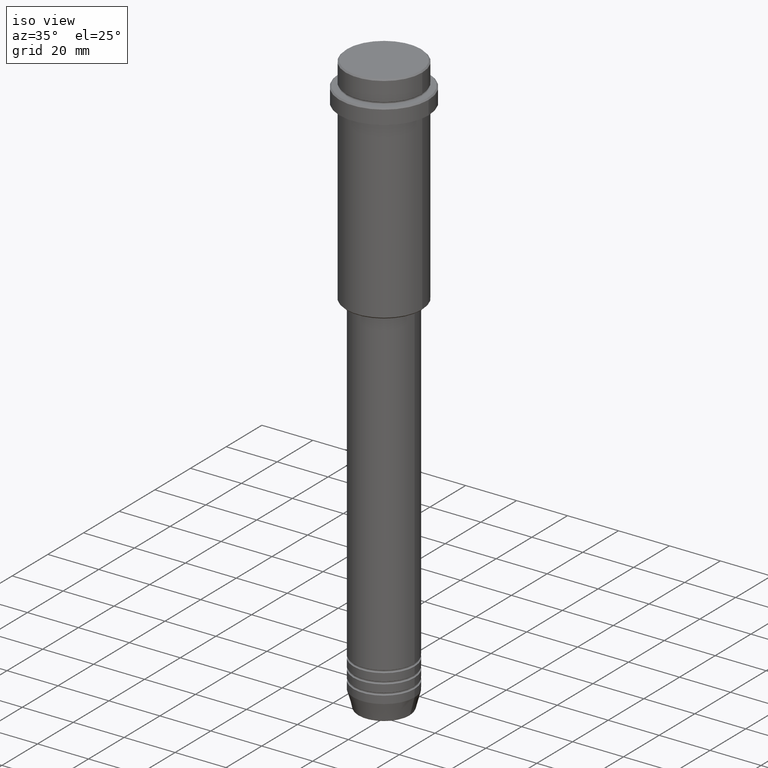
[diagram: clean part render]
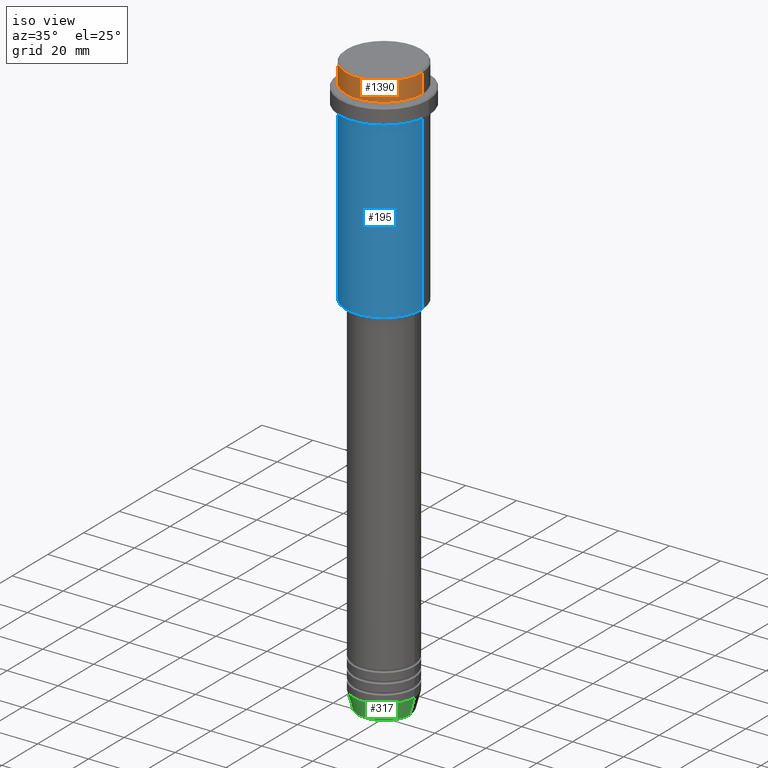
[diagram: same view with three faces highlighted in distinct colors, each labeled with its STEP entity id]
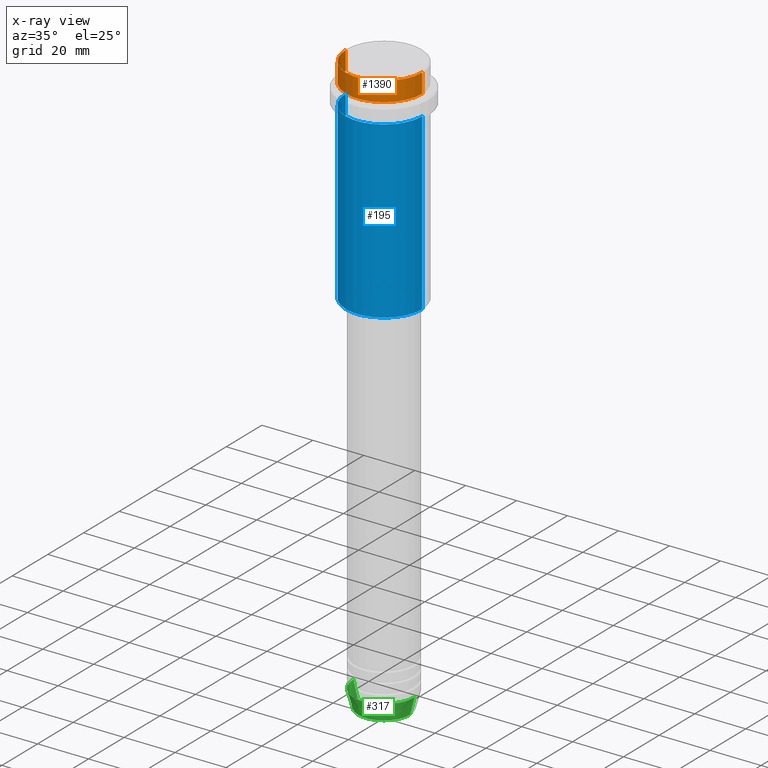
[diagram: x-ray of the same camera — body ghosted, the three highlighted faces saturated]
A machine part, iso view with three faces highlighted in distinct colors.
The next image is the same camera in x-ray (body ghosted, the three faces saturated) — at least one of them is partly hidden behind the body in this view.
Their STEP definitions:

[orange] entity #1390 — the highlighted cylindrical surface (partial cylindrical patch) has radius 15 mm, axis along (-0, -0, 1).
#33 = EDGE_CURVE ( 'NONE', #1017, #875, #1257, .T. ) ;
#69 = AXIS2_PLACEMENT_3D ( 'NONE', #923, #1372, #1055 ) ;
#70 = AXIS2_PLACEMENT_3D ( 'NONE', #411, #969, #1313 ) ;
#104 = CARTESIAN_POINT ( 'NONE',  ( -15.00000000000000000, 1.836970198721029589E-15, -7.999999999999998224 ) ) ;
#107 = DIRECTION ( 'NONE',  ( -0.000000000000000000, -0.000000000000000000, 1.000000000000000000 ) ) ;
#222 = EDGE_LOOP ( 'NONE', ( #587, #1246, #668, #1397 ) ) ;
#248 = AXIS2_PLACEMENT_3D ( 'NONE', #961, #107, #323 ) ;
#293 = CIRCLE ( 'NONE', #69, 15.00000000000000000 ) ;
#318 = CARTESIAN_POINT ( 'NONE',  ( 15.00000000000000000, 0.000000000000000000, -0.4999999999999831246 ) ) ;
#323 = DIRECTION ( 'NONE',  ( 1.000000000000000000, 0.000000000000000000, 0.000000000000000000 ) ) ;
#393 = CARTESIAN_POINT ( 'NONE',  ( 15.00000000000000000, 0.000000000000000000, 0.000000000000000000 ) ) ;
#411 = CARTESIAN_POINT ( 'NONE',  ( 0.000000000000000000, 0.000000000000000000, -7.999999999999998224 ) ) ;
#587 = ORIENTED_EDGE ( 'NONE', *, *, #1170, .F. ) ;
#640 = CYLINDRICAL_SURFACE ( 'NONE', #248, 15.00000000000000000 ) ;
#668 = ORIENTED_EDGE ( 'NONE', *, *, #1286, .T. ) ;
#763 = VECTOR ( 'NONE', #1169, 1000.000000000000000 ) ;
#826 = LINE ( 'NONE', #1267, #1229 ) ;
#875 = VERTEX_POINT ( 'NONE', #1312 ) ;
#923 = CARTESIAN_POINT ( 'NONE',  ( 0.000000000000000000, 0.000000000000000000, -0.4999999999999831246 ) ) ;
#943 = VERTEX_POINT ( 'NONE', #1405 ) ;
#961 = CARTESIAN_POINT ( 'NONE',  ( 0.000000000000000000, 0.000000000000000000, 0.000000000000000000 ) ) ;
#969 = DIRECTION ( 'NONE',  ( -0.000000000000000000, -0.000000000000000000, 1.000000000000000000 ) ) ;
#1017 = VERTEX_POINT ( 'NONE', #104 ) ;
#1034 = DIRECTION ( 'NONE',  ( -0.000000000000000000, -0.000000000000000000, 1.000000000000000000 ) ) ;
#1055 = DIRECTION ( 'NONE',  ( 1.000000000000000000, 0.000000000000000000, 0.000000000000000000 ) ) ;
#1169 = DIRECTION ( 'NONE',  ( -0.000000000000000000, -0.000000000000000000, 1.000000000000000000 ) ) ;
#1170 = EDGE_CURVE ( 'NONE', #1017, #943, #826, .T. ) ;
#1201 = EDGE_CURVE ( 'NONE', #1266, #943, #293, .T. ) ;
#1229 = VECTOR ( 'NONE', #1034, 1000.000000000000000 ) ;
#1246 = ORIENTED_EDGE ( 'NONE', *, *, #33, .T. ) ;
#1257 = CIRCLE ( 'NONE', #70, 15.00000000000000000 ) ;
#1266 = VERTEX_POINT ( 'NONE', #318 ) ;
#1267 = CARTESIAN_POINT ( 'NONE',  ( -15.00000000000000000, 1.836970198721029589E-15, 0.000000000000000000 ) ) ;
#1286 = EDGE_CURVE ( 'NONE', #875, #1266, #1363, .T. ) ;
#1301 = FACE_OUTER_BOUND ( 'NONE', #222, .T. ) ;
#1312 = CARTESIAN_POINT ( 'NONE',  ( 15.00000000000000000, 0.000000000000000000, -7.999999999999998224 ) ) ;
#1313 = DIRECTION ( 'NONE',  ( 1.000000000000000000, 0.000000000000000000, 0.000000000000000000 ) ) ;
#1363 = LINE ( 'NONE', #393, #763 ) ;
#1372 = DIRECTION ( 'NONE',  ( 0.000000000000000000, 0.000000000000000000, -1.000000000000000000 ) ) ;
#1390 = ADVANCED_FACE ( 'NONE', ( #1301 ), #640, .T. ) ;
#1397 = ORIENTED_EDGE ( 'NONE', *, *, #1201, .T. ) ;
#1405 = CARTESIAN_POINT ( 'NONE',  ( -15.00000000000000000, 1.836970198721029589E-15, -0.4999999999999831246 ) ) ;

[blue] entity #195 — the highlighted cylindrical surface (partial cylindrical patch) has radius 15 mm, axis along (-0, -0, 1).
#49 = VERTEX_POINT ( 'NONE', #105 ) ;
#58 = VERTEX_POINT ( 'NONE', #877 ) ;
#63 = AXIS2_PLACEMENT_3D ( 'NONE', #503, #1036, #824 ) ;
#105 = CARTESIAN_POINT ( 'NONE',  ( -15.00000000000000000, 1.836970198721029589E-15, -84.49999999999997158 ) ) ;
#114 = AXIS2_PLACEMENT_3D ( 'NONE', #854, #1184, #246 ) ;
#147 = DIRECTION ( 'NONE',  ( 1.000000000000000000, 0.000000000000000000, 0.000000000000000000 ) ) ;
#194 = CIRCLE ( 'NONE', #982, 15.00000000000000178 ) ;
#195 = ADVANCED_FACE ( 'NONE', ( #1146 ), #400, .T. ) ;
#246 = DIRECTION ( 'NONE',  ( -1.000000000000000000, 0.000000000000000000, 0.000000000000000000 ) ) ;
#261 = EDGE_CURVE ( 'NONE', #58, #510, #194, .T. ) ;
#352 = VERTEX_POINT ( 'NONE', #990 ) ;
#373 = CIRCLE ( 'NONE', #114, 15.00000000000000000 ) ;
#400 = CYLINDRICAL_SURFACE ( 'NONE', #63, 15.00000000000000000 ) ;
#428 = ORIENTED_EDGE ( 'NONE', *, *, #261, .F. ) ;
#503 = CARTESIAN_POINT ( 'NONE',  ( 0.000000000000000000, 0.000000000000000000, 0.000000000000000000 ) ) ;
#510 = VERTEX_POINT ( 'NONE', #1051 ) ;
#576 = CARTESIAN_POINT ( 'NONE',  ( 0.000000000000000000, 0.000000000000000000, -16.00000000000000000 ) ) ;
#738 = VECTOR ( 'NONE', #1015, 1000.000000000000000 ) ;
#747 = EDGE_LOOP ( 'NONE', ( #810, #806, #971, #428 ) ) ;
#806 = ORIENTED_EDGE ( 'NONE', *, *, #965, .T. ) ;
#810 = ORIENTED_EDGE ( 'NONE', *, *, #1094, .F. ) ;
#824 = DIRECTION ( 'NONE',  ( 1.000000000000000000, 0.000000000000000000, 0.000000000000000000 ) ) ;
#854 = CARTESIAN_POINT ( 'NONE',  ( 0.000000000000000000, 0.000000000000000000, -84.49999999999997158 ) ) ;
#877 = CARTESIAN_POINT ( 'NONE',  ( -15.00000000000000355, 1.836970198721029983E-15, -16.00000000000000000 ) ) ;
#893 = DIRECTION ( 'NONE',  ( -0.000000000000000000, -0.000000000000000000, 1.000000000000000000 ) ) ;
#895 = LINE ( 'NONE', #1107, #1007 ) ;
#965 = EDGE_CURVE ( 'NONE', #49, #352, #373, .T. ) ;
#971 = ORIENTED_EDGE ( 'NONE', *, *, #1148, .T. ) ;
#982 = AXIS2_PLACEMENT_3D ( 'NONE', #576, #893, #147 ) ;
#990 = CARTESIAN_POINT ( 'NONE',  ( 15.00000000000000000, 0.000000000000000000, -84.49999999999997158 ) ) ;
#1007 = VECTOR ( 'NONE', #1343, 1000.000000000000000 ) ;
#1015 = DIRECTION ( 'NONE',  ( -0.000000000000000000, -0.000000000000000000, 1.000000000000000000 ) ) ;
#1036 = DIRECTION ( 'NONE',  ( -0.000000000000000000, -0.000000000000000000, 1.000000000000000000 ) ) ;
#1051 = CARTESIAN_POINT ( 'NONE',  ( 15.00000000000000178, 0.000000000000000000, -16.00000000000000000 ) ) ;
#1094 = EDGE_CURVE ( 'NONE', #49, #58, #1117, .T. ) ;
#1107 = CARTESIAN_POINT ( 'NONE',  ( 15.00000000000000000, 0.000000000000000000, 0.000000000000000000 ) ) ;
#1117 = LINE ( 'NONE', #1334, #738 ) ;
#1146 = FACE_OUTER_BOUND ( 'NONE', #747, .T. ) ;
#1148 = EDGE_CURVE ( 'NONE', #352, #510, #895, .T. ) ;
#1184 = DIRECTION ( 'NONE',  ( -0.000000000000000000, -0.000000000000000000, 1.000000000000000000 ) ) ;
#1334 = CARTESIAN_POINT ( 'NONE',  ( -15.00000000000000000, 1.836970198721029589E-15, 0.000000000000000000 ) ) ;
#1343 = DIRECTION ( 'NONE',  ( -0.000000000000000000, -0.000000000000000000, 1.000000000000000000 ) ) ;

[green] entity #317 — the highlighted conical surface has half-angle 15 deg.
#6 = CARTESIAN_POINT ( 'NONE',  ( -12.00000000000000000, 1.469576158976823947E-15, -222.9999999999999716 ) ) ;
#25 = LINE ( 'NONE', #794, #1331 ) ;
#101 = DIRECTION ( 'NONE',  ( 1.000000000000000000, 0.000000000000000000, 0.000000000000000000 ) ) ;
#179 = FACE_OUTER_BOUND ( 'NONE', #431, .T. ) ;
#180 = CARTESIAN_POINT ( 'NONE',  ( -10.22365507213719127, 1.360806402472382744E-15, -229.6294095225512422 ) ) ;
#187 = DIRECTION ( 'NONE',  ( -0.2588190451025213501, 3.169619151431772337E-17, 0.9659258262890680902 ) ) ;
#205 = CARTESIAN_POINT ( 'NONE',  ( 10.22365507213719127, 0.000000000000000000, -229.6294095225512422 ) ) ;
#220 = ORIENTED_EDGE ( 'NONE', *, *, #1159, .F. ) ;
#232 = DIRECTION ( 'NONE',  ( 1.000000000000000000, 0.000000000000000000, 0.000000000000000000 ) ) ;
#266 = EDGE_CURVE ( 'NONE', #1336, #795, #1350, .T. ) ;
#280 = DIRECTION ( 'NONE',  ( -0.000000000000000000, -0.000000000000000000, 1.000000000000000000 ) ) ;
#303 = CARTESIAN_POINT ( 'NONE',  ( 12.00000000000000000, 0.000000000000000000, -222.9999999999999716 ) ) ;
#315 = ORIENTED_EDGE ( 'NONE', *, *, #1314, .T. ) ;
#317 = ADVANCED_FACE ( 'NONE', ( #179 ), #1108, .T. ) ;
#330 = CARTESIAN_POINT ( 'NONE',  ( 0.000000000000000000, 0.000000000000000000, -222.9999999999999716 ) ) ;
#354 = VERTEX_POINT ( 'NONE', #6 ) ;
#387 = LINE ( 'NONE', #303, #761 ) ;
#416 = AXIS2_PLACEMENT_3D ( 'NONE', #1019, #280, #506 ) ;
#431 = EDGE_LOOP ( 'NONE', ( #220, #972, #315, #855 ) ) ;
#506 = DIRECTION ( 'NONE',  ( 1.000000000000000000, 0.000000000000000000, 0.000000000000000000 ) ) ;
#554 = CIRCLE ( 'NONE', #1206, 12.00000000000000000 ) ;
#607 = DIRECTION ( 'NONE',  ( 0.2588190451025213501, 0.000000000000000000, 0.9659258262890680902 ) ) ;
#696 = EDGE_CURVE ( 'NONE', #354, #723, #554, .T. ) ;
#723 = VERTEX_POINT ( 'NONE', #1356 ) ;
#761 = VECTOR ( 'NONE', #607, 1000.000000000000000 ) ;
#794 = CARTESIAN_POINT ( 'NONE',  ( -12.00000000000000000, 1.469576158976823947E-15, -222.9999999999999716 ) ) ;
#795 = VERTEX_POINT ( 'NONE', #205 ) ;
#855 = ORIENTED_EDGE ( 'NONE', *, *, #696, .F. ) ;
#952 = AXIS2_PLACEMENT_3D ( 'NONE', #1008, #1412, #232 ) ;
#972 = ORIENTED_EDGE ( 'NONE', *, *, #266, .T. ) ;
#1008 = CARTESIAN_POINT ( 'NONE',  ( 0.000000000000000000, 0.000000000000000000, -229.6294095225512422 ) ) ;
#1019 = CARTESIAN_POINT ( 'NONE',  ( 0.000000000000000000, 0.000000000000000000, -222.9999999999999716 ) ) ;
#1108 = CONICAL_SURFACE ( 'NONE', #416, 12.00000000000000000, 0.2617993877991500740 ) ;
#1159 = EDGE_CURVE ( 'NONE', #1336, #354, #25, .T. ) ;
#1206 = AXIS2_PLACEMENT_3D ( 'NONE', #330, #1298, #101 ) ;
#1298 = DIRECTION ( 'NONE',  ( -0.000000000000000000, -0.000000000000000000, 1.000000000000000000 ) ) ;
#1314 = EDGE_CURVE ( 'NONE', #795, #723, #387, .T. ) ;
#1331 = VECTOR ( 'NONE', #187, 1000.000000000000000 ) ;
#1336 = VERTEX_POINT ( 'NONE', #180 ) ;
#1350 = CIRCLE ( 'NONE', #952, 10.22365507213719127 ) ;
#1356 = CARTESIAN_POINT ( 'NONE',  ( 12.00000000000000000, 0.000000000000000000, -222.9999999999999716 ) ) ;
#1412 = DIRECTION ( 'NONE',  ( -0.000000000000000000, -0.000000000000000000, 1.000000000000000000 ) ) ;